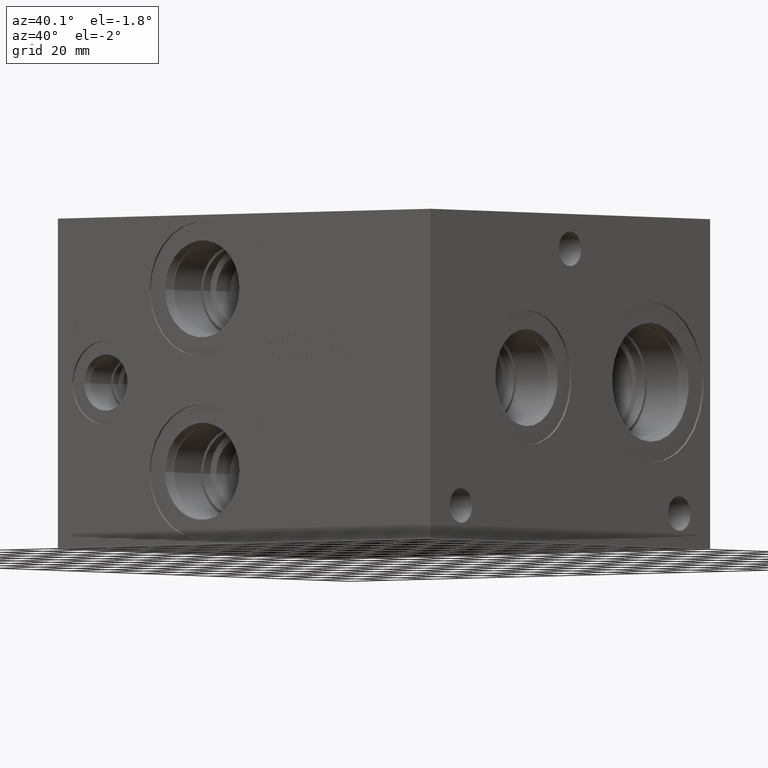
[diagram: clean part render]
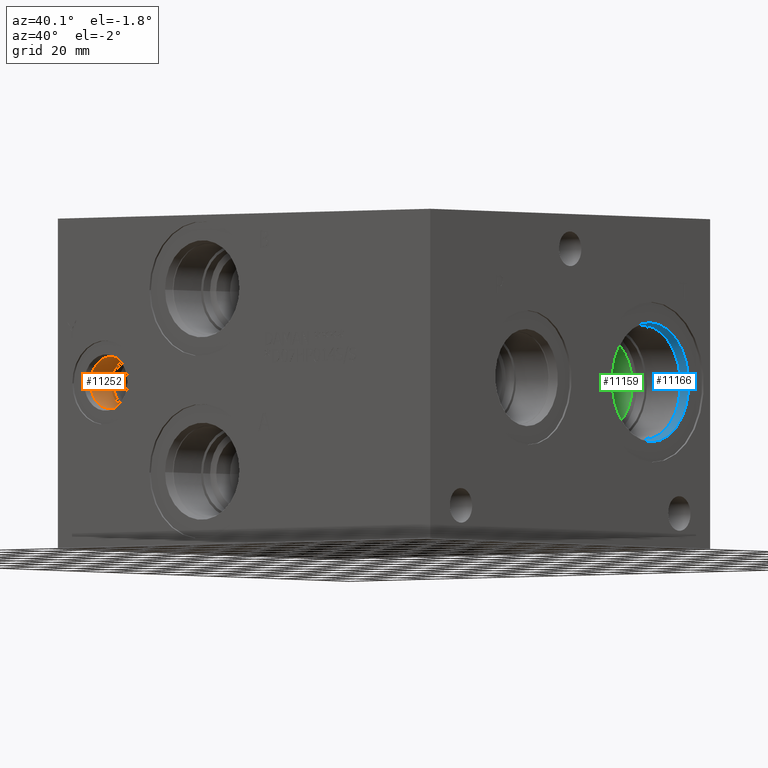
[diagram: same view with three faces highlighted in distinct colors, each labeled with its STEP entity id]
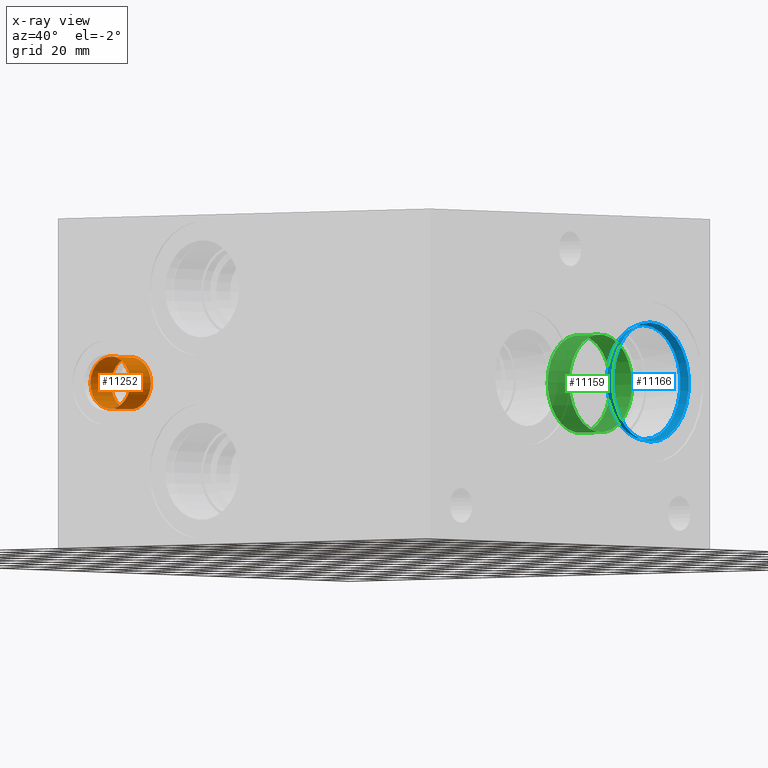
[diagram: x-ray of the same camera — body ghosted, the three highlighted faces saturated]
A machine part, auxiliary view with three faces highlighted in distinct colors.
The next image is the same camera in x-ray (body ghosted, the three faces saturated) — at least one of them is partly hidden behind the body in this view.
Their STEP definitions:

[orange] entity #11252 — the highlighted cylindrical surface (bore or boss wall) has radius 9.525 mm, axis along (0, -1, 0).
#113=CYLINDRICAL_SURFACE('',#11930,9.525);
#327=CIRCLE('',#11927,9.525);
#328=CIRCLE('',#11928,9.525);
#330=CIRCLE('',#11931,9.525);
#1369=FACE_OUTER_BOUND('',#2026,.T.);
#2026=EDGE_LOOP('',(#9686,#9687,#9688,#9689,#9690));
#3119=LINE('',#19005,#4180);
#4180=VECTOR('',#14313,9.525);
#5199=VERTEX_POINT('',#18996);
#5200=VERTEX_POINT('',#18997);
#5202=VERTEX_POINT('',#19003);
#6728=EDGE_CURVE('',#5199,#5200,#327,.T.);
#6729=EDGE_CURVE('',#5200,#5199,#328,.T.);
#6731=EDGE_CURVE('',#5202,#5202,#330,.T.);
#6732=EDGE_CURVE('',#5202,#5200,#3119,.T.);
#9686=ORIENTED_EDGE('',*,*,#6731,.F.);
#9687=ORIENTED_EDGE('',*,*,#6732,.T.);
#9688=ORIENTED_EDGE('',*,*,#6728,.F.);
#9689=ORIENTED_EDGE('',*,*,#6729,.F.);
#9690=ORIENTED_EDGE('',*,*,#6732,.F.);
#11252=ADVANCED_FACE('',(#1369),#113,.F.);
#11927=AXIS2_PLACEMENT_3D('',#18998,#14303,#14304);
#11928=AXIS2_PLACEMENT_3D('',#18999,#14305,#14306);
#11930=AXIS2_PLACEMENT_3D('',#19002,#14309,#14310);
#11931=AXIS2_PLACEMENT_3D('',#19004,#14311,#14312);
#14303=DIRECTION('center_axis',(0.,-1.,0.));
#14304=DIRECTION('ref_axis',(1.,0.,0.));
#14305=DIRECTION('center_axis',(0.,-1.,0.));
#14306=DIRECTION('ref_axis',(1.,0.,0.));
#14309=DIRECTION('center_axis',(0.,-1.,0.));
#14310=DIRECTION('ref_axis',(1.,0.,0.));
#14311=DIRECTION('center_axis',(0.,1.,0.));
#14312=DIRECTION('ref_axis',(1.,0.,0.));
#14313=DIRECTION('',(0.,1.,0.));
#18996=CARTESIAN_POINT('',(31.75,15.0622,60.325));
#18997=CARTESIAN_POINT('',(12.7,15.0622,60.325));
#18998=CARTESIAN_POINT('Origin',(22.225,15.0622,60.325));
#18999=CARTESIAN_POINT('Origin',(22.225,15.0622,60.325));
#19002=CARTESIAN_POINT('Origin',(22.225,7.5311,60.325));
#19003=CARTESIAN_POINT('',(12.7,3.4036,60.325));
#19004=CARTESIAN_POINT('Origin',(22.225,3.4036,60.325));
#19005=CARTESIAN_POINT('',(12.7,7.5311,60.325));

[blue] entity #11166 — the highlighted conical surface has half-angle 15 deg.
#19=CONICAL_SURFACE('',#11714,21.31695,0.26179938953232);
#198=CIRCLE('',#11712,21.7551);
#199=CIRCLE('',#11713,21.7551);
#200=CIRCLE('',#11715,20.8788);
#201=CIRCLE('',#11716,20.8788);
#1283=FACE_OUTER_BOUND('',#1923,.T.);
#1923=EDGE_LOOP('',(#9267,#9268,#9269,#9270,#9271,#9272));
#3050=LINE('',#18577,#4111);
#4111=VECTOR('',#13810,21.31695);
#5058=VERTEX_POINT('',#18571);
#5059=VERTEX_POINT('',#18572);
#5060=VERTEX_POINT('',#18576);
#5061=VERTEX_POINT('',#18578);
#6530=EDGE_CURVE('',#5058,#5059,#198,.T.);
#6531=EDGE_CURVE('',#5059,#5058,#199,.T.);
#6532=EDGE_CURVE('',#5059,#5060,#3050,.T.);
#6533=EDGE_CURVE('',#5060,#5061,#200,.T.);
#6534=EDGE_CURVE('',#5061,#5060,#201,.T.);
#9267=ORIENTED_EDGE('',*,*,#6530,.F.);
#9268=ORIENTED_EDGE('',*,*,#6531,.F.);
#9269=ORIENTED_EDGE('',*,*,#6532,.T.);
#9270=ORIENTED_EDGE('',*,*,#6533,.T.);
#9271=ORIENTED_EDGE('',*,*,#6534,.T.);
#9272=ORIENTED_EDGE('',*,*,#6532,.F.);
#11166=ADVANCED_FACE('',(#1283),#19,.F.);
#11712=AXIS2_PLACEMENT_3D('',#18573,#13804,#13805);
#11713=AXIS2_PLACEMENT_3D('',#18574,#13806,#13807);
#11714=AXIS2_PLACEMENT_3D('',#18575,#13808,#13809);
#11715=AXIS2_PLACEMENT_3D('',#18579,#13811,#13812);
#11716=AXIS2_PLACEMENT_3D('',#18580,#13813,#13814);
#13804=DIRECTION('center_axis',(-1.,0.,0.));
#13805=DIRECTION('ref_axis',(0.,0.,1.));
#13806=DIRECTION('center_axis',(-1.,0.,0.));
#13807=DIRECTION('ref_axis',(0.,0.,1.));
#13808=DIRECTION('center_axis',(1.,0.,0.));
#13809=DIRECTION('ref_axis',(0.,0.,-1.));
#13810=DIRECTION('',(-0.965925825840491,-3.16961917193375E-17,-0.258819046776635));
#13811=DIRECTION('center_axis',(-1.,0.,0.));
#13812=DIRECTION('ref_axis',(0.,0.,1.));
#13813=DIRECTION('center_axis',(-1.,0.,0.));
#13814=DIRECTION('ref_axis',(0.,0.,1.));
#18571=CARTESIAN_POINT('',(177.0126,125.8316,38.5699));
#18572=CARTESIAN_POINT('',(177.0126,125.8316,82.0801));
#18573=CARTESIAN_POINT('Origin',(177.0126,125.8316,60.325));
#18574=CARTESIAN_POINT('Origin',(177.0126,125.8316,60.325));
#18575=CARTESIAN_POINT('Origin',(175.37740195,125.8316,60.325));
#18576=CARTESIAN_POINT('',(173.7422039,125.8316,81.2038));
#18577=CARTESIAN_POINT('',(175.37740195,125.8316,81.64195));
#18578=CARTESIAN_POINT('',(173.7422039,125.8316,39.4462));
#18579=CARTESIAN_POINT('Origin',(173.7422039,125.8316,60.325));
#18580=CARTESIAN_POINT('Origin',(173.7422039,125.8316,60.325));

[green] entity #11159 — the highlighted cylindrical surface (bore or boss wall) has radius 17.8562 mm, axis along (1, 0, 0).
#70=CYLINDRICAL_SURFACE('',#11695,17.8562);
#186=CIRCLE('',#11693,17.8562);
#187=CIRCLE('',#11694,17.8562);
#188=CIRCLE('',#11696,17.8562);
#1276=FACE_OUTER_BOUND('',#1914,.T.);
#1914=EDGE_LOOP('',(#9233,#9234,#9235,#9236,#9237));
#3045=LINE('',#18542,#4106);
#4106=VECTOR('',#13769,17.8562);
#5045=VERTEX_POINT('',#18533);
#5046=VERTEX_POINT('',#18534);
#5048=VERTEX_POINT('',#18540);
#6512=EDGE_CURVE('',#5045,#5046,#186,.T.);
#6514=EDGE_CURVE('',#5046,#5045,#187,.T.);
#6515=EDGE_CURVE('',#5048,#5048,#188,.T.);
#6516=EDGE_CURVE('',#5048,#5046,#3045,.T.);
#9233=ORIENTED_EDGE('',*,*,#6515,.F.);
#9234=ORIENTED_EDGE('',*,*,#6516,.T.);
#9235=ORIENTED_EDGE('',*,*,#6512,.F.);
#9236=ORIENTED_EDGE('',*,*,#6514,.F.);
#9237=ORIENTED_EDGE('',*,*,#6516,.F.);
#11159=ADVANCED_FACE('',(#1276),#70,.F.);
#11693=AXIS2_PLACEMENT_3D('',#18535,#13760,#13761);
#11694=AXIS2_PLACEMENT_3D('',#18538,#13763,#13764);
#11695=AXIS2_PLACEMENT_3D('',#18539,#13765,#13766);
#11696=AXIS2_PLACEMENT_3D('',#18541,#13767,#13768);
#13760=DIRECTION('center_axis',(1.,0.,0.));
#13761=DIRECTION('ref_axis',(0.,1.,0.));
#13763=DIRECTION('center_axis',(1.,0.,0.));
#13764=DIRECTION('ref_axis',(0.,1.,0.));
#13765=DIRECTION('center_axis',(1.,0.,0.));
#13766=DIRECTION('ref_axis',(0.,1.,0.));
#13767=DIRECTION('center_axis',(-1.,0.,0.));
#13768=DIRECTION('ref_axis',(0.,1.,0.));
#13769=DIRECTION('',(-1.,0.,0.));
#18533=CARTESIAN_POINT('',(142.91061,143.6878,60.325));
#18534=CARTESIAN_POINT('',(142.91061,107.9754,60.325));
#18535=CARTESIAN_POINT('Origin',(142.91061,125.8316,60.325));
#18538=CARTESIAN_POINT('Origin',(142.91061,125.8316,60.325));
#18539=CARTESIAN_POINT('Origin',(160.355305,125.8316,60.325));
#18540=CARTESIAN_POINT('',(153.219892206128,107.9754,60.325));
#18541=CARTESIAN_POINT('Origin',(153.219892206128,125.8316,60.325));
#18542=CARTESIAN_POINT('',(160.355305,107.9754,60.325));